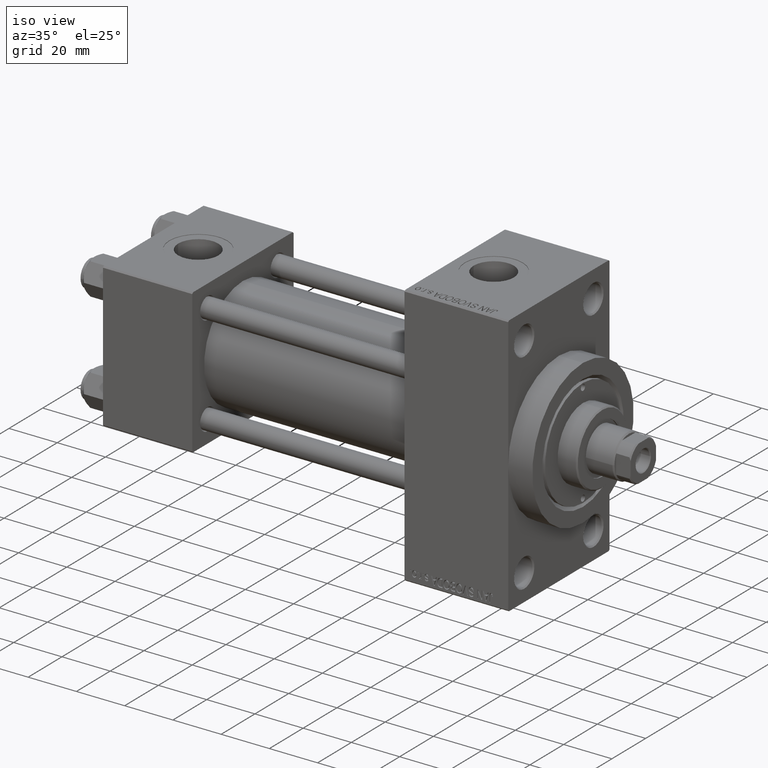
[diagram: clean part render]
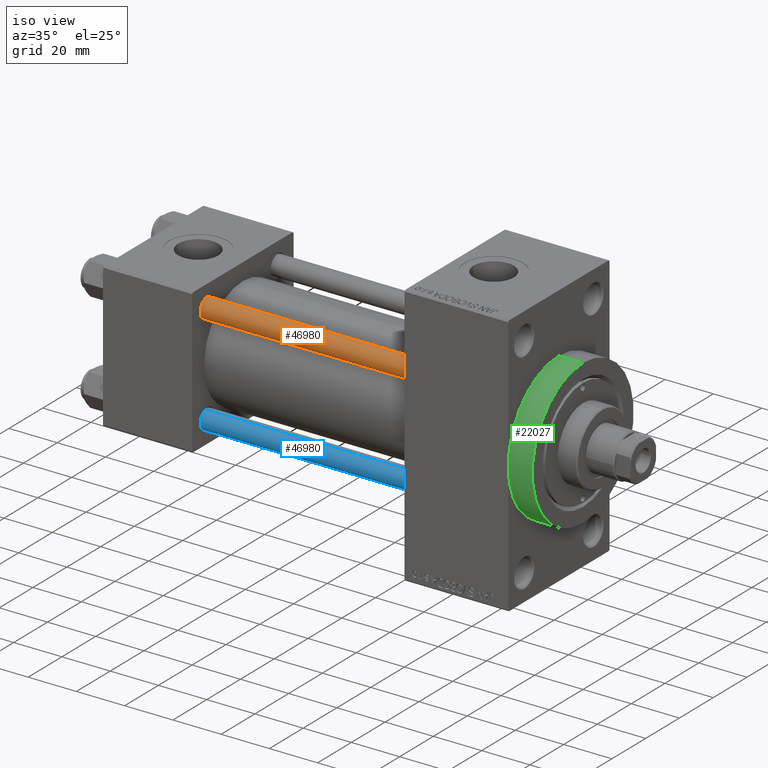
[diagram: same view with three faces highlighted in distinct colors, each labeled with its STEP entity id]
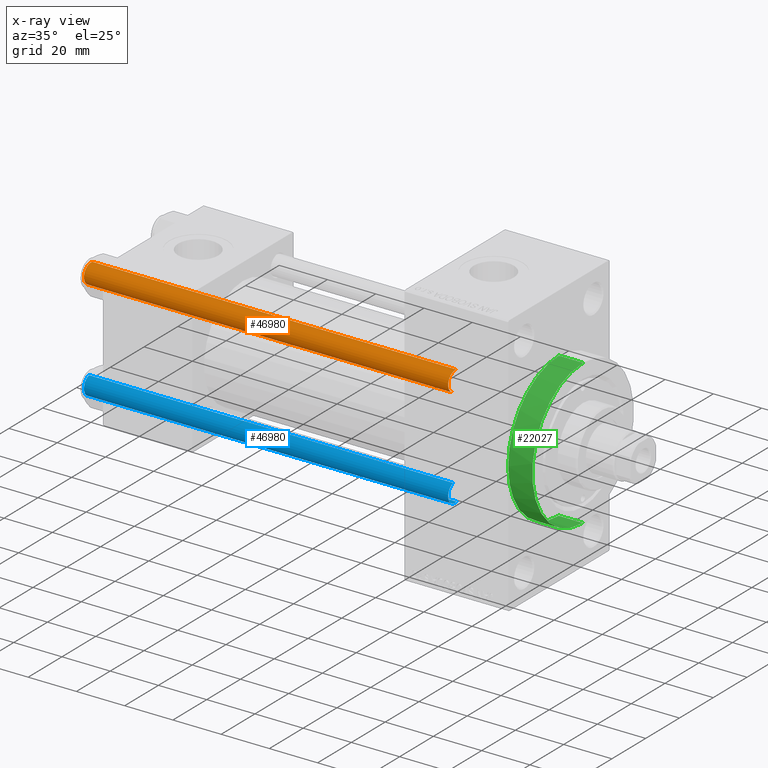
[diagram: x-ray of the same camera — body ghosted, the three highlighted faces saturated]
A machine part, iso view with three faces highlighted in distinct colors.
The next image is the same camera in x-ray (body ghosted, the three faces saturated) — at least one of them is partly hidden behind the body in this view.
Their STEP definitions:

[orange] entity #46980 — the highlighted cylindrical surface (edge-blend (fillet) strip) has radius 4 mm, axis along (1, 0, 0).
#1799 = ORIENTED_EDGE ( 'NONE', *, *, #34172, .T. ) ;
#3492 = CARTESIAN_POINT ( 'NONE',  ( 4.000000000000000000, 4.898587196589412829E-16, 0.5000000000000281997 ) ) ;
#4815 = AXIS2_PLACEMENT_3D ( 'NONE', #41974, #42453, #27790 ) ;
#4898 = ORIENTED_EDGE ( 'NONE', *, *, #46753, .F. ) ;
#4943 = DIRECTION ( 'NONE',  ( 1.000000000000000000, 0.000000000000000000, 0.000000000000000000 ) ) ;
#5589 = CARTESIAN_POINT ( 'NONE',  ( 0.000000000000000000, 0.000000000000000000, 152.0000000000000000 ) ) ;
#6131 = CARTESIAN_POINT ( 'NONE',  ( -4.000000000000000000, 0.000000000000000000, 152.0000000000000000 ) ) ;
#6729 = VERTEX_POINT ( 'NONE', #14418 ) ;
#6939 = CARTESIAN_POINT ( 'NONE',  ( 4.000000000000000000, 4.898587196589412829E-16, 152.0000000000000000 ) ) ;
#7734 = AXIS2_PLACEMENT_3D ( 'NONE', #5589, #20215, #9658 ) ;
#9658 = DIRECTION ( 'NONE',  ( -1.000000000000000000, 0.000000000000000000, 0.000000000000000000 ) ) ;
#9699 = EDGE_LOOP ( 'NONE', ( #22522, #1799, #14111, #4898 ) ) ;
#10997 = DIRECTION ( 'NONE',  ( -0.000000000000000000, -0.000000000000000000, -1.000000000000000000 ) ) ;
#14111 = ORIENTED_EDGE ( 'NONE', *, *, #35424, .T. ) ;
#14418 = CARTESIAN_POINT ( 'NONE',  ( 4.000000000000000000, 4.898587196589412829E-16, 151.5000000000000284 ) ) ;
#17840 = VERTEX_POINT ( 'NONE', #3492 ) ;
#18432 = LINE ( 'NONE', #6939, #36995 ) ;
#18456 = VECTOR ( 'NONE', #21218, 1000.000000000000000 ) ;
#20215 = DIRECTION ( 'NONE',  ( -0.000000000000000000, -0.000000000000000000, -1.000000000000000000 ) ) ;
#20336 = CIRCLE ( 'NONE', #36439, 4.000000000000000000 ) ;
#21218 = DIRECTION ( 'NONE',  ( -0.000000000000000000, -0.000000000000000000, -1.000000000000000000 ) ) ;
#22411 = CARTESIAN_POINT ( 'NONE',  ( -4.000000000000000000, 0.000000000000000000, 0.5000000000000281997 ) ) ;
#22522 = ORIENTED_EDGE ( 'NONE', *, *, #45429, .T. ) ;
#22919 = CARTESIAN_POINT ( 'NONE',  ( 0.000000000000000000, 0.000000000000000000, 151.5000000000000284 ) ) ;
#24042 = FACE_OUTER_BOUND ( 'NONE', #9699, .T. ) ;
#25488 = CIRCLE ( 'NONE', #4815, 4.000000000000000000 ) ;
#27790 = DIRECTION ( 'NONE',  ( 1.000000000000000000, 0.000000000000000000, 0.000000000000000000 ) ) ;
#31733 = CYLINDRICAL_SURFACE ( 'NONE', #7734, 4.000000000000000000 ) ;
#32962 = CARTESIAN_POINT ( 'NONE',  ( -4.000000000000000000, 0.000000000000000000, 151.5000000000000284 ) ) ;
#34172 = EDGE_CURVE ( 'NONE', #6729, #17840, #18432, .T. ) ;
#35424 = EDGE_CURVE ( 'NONE', #17840, #36254, #25488, .T. ) ;
#36254 = VERTEX_POINT ( 'NONE', #22411 ) ;
#36439 = AXIS2_PLACEMENT_3D ( 'NONE', #22919, #45513, #4943 ) ;
#36995 = VECTOR ( 'NONE', #10997, 1000.000000000000000 ) ;
#39244 = LINE ( 'NONE', #6131, #18456 ) ;
#41974 = CARTESIAN_POINT ( 'NONE',  ( 0.000000000000000000, 0.000000000000000000, 0.5000000000000281997 ) ) ;
#42453 = DIRECTION ( 'NONE',  ( -0.000000000000000000, -0.000000000000000000, 1.000000000000000000 ) ) ;
#43750 = VERTEX_POINT ( 'NONE', #32962 ) ;
#45429 = EDGE_CURVE ( 'NONE', #43750, #6729, #20336, .T. ) ;
#45513 = DIRECTION ( 'NONE',  ( 0.000000000000000000, 0.000000000000000000, -1.000000000000000000 ) ) ;
#46753 = EDGE_CURVE ( 'NONE', #43750, #36254, #39244, .T. ) ;
#46980 = ADVANCED_FACE ( 'NONE', ( #24042 ), #31733, .T. ) ;

[blue] entity #46980 — the highlighted cylindrical surface (edge-blend (fillet) strip) has radius 4 mm, axis along (-1, 0, 0).
#1799 = ORIENTED_EDGE ( 'NONE', *, *, #34172, .T. ) ;
#3492 = CARTESIAN_POINT ( 'NONE',  ( 4.000000000000000000, 4.898587196589412829E-16, 0.5000000000000281997 ) ) ;
#4815 = AXIS2_PLACEMENT_3D ( 'NONE', #41974, #42453, #27790 ) ;
#4898 = ORIENTED_EDGE ( 'NONE', *, *, #46753, .F. ) ;
#4943 = DIRECTION ( 'NONE',  ( 1.000000000000000000, 0.000000000000000000, 0.000000000000000000 ) ) ;
#5589 = CARTESIAN_POINT ( 'NONE',  ( 0.000000000000000000, 0.000000000000000000, 152.0000000000000000 ) ) ;
#6131 = CARTESIAN_POINT ( 'NONE',  ( -4.000000000000000000, 0.000000000000000000, 152.0000000000000000 ) ) ;
#6729 = VERTEX_POINT ( 'NONE', #14418 ) ;
#6939 = CARTESIAN_POINT ( 'NONE',  ( 4.000000000000000000, 4.898587196589412829E-16, 152.0000000000000000 ) ) ;
#7734 = AXIS2_PLACEMENT_3D ( 'NONE', #5589, #20215, #9658 ) ;
#9658 = DIRECTION ( 'NONE',  ( -1.000000000000000000, 0.000000000000000000, 0.000000000000000000 ) ) ;
#9699 = EDGE_LOOP ( 'NONE', ( #22522, #1799, #14111, #4898 ) ) ;
#10997 = DIRECTION ( 'NONE',  ( -0.000000000000000000, -0.000000000000000000, -1.000000000000000000 ) ) ;
#14111 = ORIENTED_EDGE ( 'NONE', *, *, #35424, .T. ) ;
#14418 = CARTESIAN_POINT ( 'NONE',  ( 4.000000000000000000, 4.898587196589412829E-16, 151.5000000000000284 ) ) ;
#17840 = VERTEX_POINT ( 'NONE', #3492 ) ;
#18432 = LINE ( 'NONE', #6939, #36995 ) ;
#18456 = VECTOR ( 'NONE', #21218, 1000.000000000000000 ) ;
#20215 = DIRECTION ( 'NONE',  ( -0.000000000000000000, -0.000000000000000000, -1.000000000000000000 ) ) ;
#20336 = CIRCLE ( 'NONE', #36439, 4.000000000000000000 ) ;
#21218 = DIRECTION ( 'NONE',  ( -0.000000000000000000, -0.000000000000000000, -1.000000000000000000 ) ) ;
#22411 = CARTESIAN_POINT ( 'NONE',  ( -4.000000000000000000, 0.000000000000000000, 0.5000000000000281997 ) ) ;
#22522 = ORIENTED_EDGE ( 'NONE', *, *, #45429, .T. ) ;
#22919 = CARTESIAN_POINT ( 'NONE',  ( 0.000000000000000000, 0.000000000000000000, 151.5000000000000284 ) ) ;
#24042 = FACE_OUTER_BOUND ( 'NONE', #9699, .T. ) ;
#25488 = CIRCLE ( 'NONE', #4815, 4.000000000000000000 ) ;
#27790 = DIRECTION ( 'NONE',  ( 1.000000000000000000, 0.000000000000000000, 0.000000000000000000 ) ) ;
#31733 = CYLINDRICAL_SURFACE ( 'NONE', #7734, 4.000000000000000000 ) ;
#32962 = CARTESIAN_POINT ( 'NONE',  ( -4.000000000000000000, 0.000000000000000000, 151.5000000000000284 ) ) ;
#34172 = EDGE_CURVE ( 'NONE', #6729, #17840, #18432, .T. ) ;
#35424 = EDGE_CURVE ( 'NONE', #17840, #36254, #25488, .T. ) ;
#36254 = VERTEX_POINT ( 'NONE', #22411 ) ;
#36439 = AXIS2_PLACEMENT_3D ( 'NONE', #22919, #45513, #4943 ) ;
#36995 = VECTOR ( 'NONE', #10997, 1000.000000000000000 ) ;
#39244 = LINE ( 'NONE', #6131, #18456 ) ;
#41974 = CARTESIAN_POINT ( 'NONE',  ( 0.000000000000000000, 0.000000000000000000, 0.5000000000000281997 ) ) ;
#42453 = DIRECTION ( 'NONE',  ( -0.000000000000000000, -0.000000000000000000, 1.000000000000000000 ) ) ;
#43750 = VERTEX_POINT ( 'NONE', #32962 ) ;
#45429 = EDGE_CURVE ( 'NONE', #43750, #6729, #20336, .T. ) ;
#45513 = DIRECTION ( 'NONE',  ( 0.000000000000000000, 0.000000000000000000, -1.000000000000000000 ) ) ;
#46753 = EDGE_CURVE ( 'NONE', #43750, #36254, #39244, .T. ) ;
#46980 = ADVANCED_FACE ( 'NONE', ( #24042 ), #31733, .T. ) ;

[green] entity #22027 — the highlighted cylindrical surface (partial cylindrical patch) has radius 30 mm, axis along (-1, -0, -0).
#6078 = DIRECTION ( 'NONE',  ( 0.000000000000000000, 0.000000000000000000, -1.000000000000000000 ) ) ;
#6299 = ORIENTED_EDGE ( 'NONE', *, *, #20435, .T. ) ;
#6350 = EDGE_CURVE ( 'NONE', #39970, #10097, #16492, .T. ) ;
#6757 = CIRCLE ( 'NONE', #42816, 30.00000000000000000 ) ;
#7792 = CARTESIAN_POINT ( 'NONE',  ( 167.9999999999999716, 0.000000000000000000, 0.000000000000000000 ) ) ;
#8486 = EDGE_CURVE ( 'NONE', #44942, #37207, #22044, .T. ) ;
#9295 = EDGE_LOOP ( 'NONE', ( #40374, #47228, #10052, #28690, #6299 ) ) ;
#10052 = ORIENTED_EDGE ( 'NONE', *, *, #21684, .T. ) ;
#10097 = VERTEX_POINT ( 'NONE', #13049 ) ;
#13015 = CARTESIAN_POINT ( 'NONE',  ( 178.0000000000000000, 0.000000000000000000, 0.000000000000000000 ) ) ;
#13049 = CARTESIAN_POINT ( 'NONE',  ( 167.9999999999999716, -30.00000000000000000, 0.000000000000000000 ) ) ;
#13633 = AXIS2_PLACEMENT_3D ( 'NONE', #13015, #46392, #6078 ) ;
#16052 = EDGE_CURVE ( 'NONE', #46420, #44942, #45828, .T. ) ;
#16149 = CARTESIAN_POINT ( 'NONE',  ( 178.0000000000000000, 0.000000000000000000, 30.00000000000000000 ) ) ;
#16492 = CIRCLE ( 'NONE', #28005, 30.00000000000000000 ) ;
#17535 = AXIS2_PLACEMENT_3D ( 'NONE', #32239, #28644, #25032 ) ;
#17601 = CYLINDRICAL_SURFACE ( 'NONE', #17535, 30.00000000000000000 ) ;
#17985 = VECTOR ( 'NONE', #18452, 1000.000000000000000 ) ;
#18452 = DIRECTION ( 'NONE',  ( -1.000000000000000000, -0.000000000000000000, -0.000000000000000000 ) ) ;
#19282 = CARTESIAN_POINT ( 'NONE',  ( 178.0000000000000000, 0.000000000000000000, 30.00000000000000000 ) ) ;
#19993 = DIRECTION ( 'NONE',  ( -1.000000000000000000, -0.000000000000000000, -0.000000000000000000 ) ) ;
#20435 = EDGE_CURVE ( 'NONE', #10097, #37207, #6757, .T. ) ;
#20744 = CARTESIAN_POINT ( 'NONE',  ( 167.9999999999999716, 3.673940397442059178E-15, -30.00000000000000000 ) ) ;
#21684 = EDGE_CURVE ( 'NONE', #46420, #39970, #27673, .T. ) ;
#21951 = DIRECTION ( 'NONE',  ( 0.000000000000000000, 0.000000000000000000, -1.000000000000000000 ) ) ;
#22027 = ADVANCED_FACE ( 'NONE', ( #24800 ), #17601, .T. ) ;
#22044 = LINE ( 'NONE', #26584, #17985 ) ;
#24588 = CARTESIAN_POINT ( 'NONE',  ( 167.9999999999999716, 0.000000000000000000, 0.000000000000000000 ) ) ;
#24800 = FACE_OUTER_BOUND ( 'NONE', #9295, .T. ) ;
#24825 = DIRECTION ( 'NONE',  ( 0.000000000000000000, 0.000000000000000000, -1.000000000000000000 ) ) ;
#25032 = DIRECTION ( 'NONE',  ( 0.000000000000000000, 0.000000000000000000, 1.000000000000000000 ) ) ;
#26584 = CARTESIAN_POINT ( 'NONE',  ( 178.0000000000000000, 3.673940397442059178E-15, -30.00000000000000000 ) ) ;
#27673 = LINE ( 'NONE', #16149, #35852 ) ;
#28005 = AXIS2_PLACEMENT_3D ( 'NONE', #7792, #28936, #21951 ) ;
#28644 = DIRECTION ( 'NONE',  ( -1.000000000000000000, -0.000000000000000000, -0.000000000000000000 ) ) ;
#28690 = ORIENTED_EDGE ( 'NONE', *, *, #6350, .T. ) ;
#28936 = DIRECTION ( 'NONE',  ( 1.000000000000000000, 0.000000000000000000, 0.000000000000000000 ) ) ;
#32239 = CARTESIAN_POINT ( 'NONE',  ( 178.0000000000000000, 0.000000000000000000, 0.000000000000000000 ) ) ;
#35852 = VECTOR ( 'NONE', #19993, 1000.000000000000000 ) ;
#37207 = VERTEX_POINT ( 'NONE', #20744 ) ;
#39253 = DIRECTION ( 'NONE',  ( 1.000000000000000000, 0.000000000000000000, 0.000000000000000000 ) ) ;
#39970 = VERTEX_POINT ( 'NONE', #45291 ) ;
#40374 = ORIENTED_EDGE ( 'NONE', *, *, #8486, .F. ) ;
#42816 = AXIS2_PLACEMENT_3D ( 'NONE', #24588, #39253, #24825 ) ;
#44942 = VERTEX_POINT ( 'NONE', #46105 ) ;
#45291 = CARTESIAN_POINT ( 'NONE',  ( 167.9999999999999716, 0.000000000000000000, 30.00000000000000000 ) ) ;
#45828 = CIRCLE ( 'NONE', #13633, 30.00000000000000000 ) ;
#46105 = CARTESIAN_POINT ( 'NONE',  ( 178.0000000000000000, 3.673940397442059178E-15, -30.00000000000000000 ) ) ;
#46392 = DIRECTION ( 'NONE',  ( 1.000000000000000000, 0.000000000000000000, 0.000000000000000000 ) ) ;
#46420 = VERTEX_POINT ( 'NONE', #19282 ) ;
#47228 = ORIENTED_EDGE ( 'NONE', *, *, #16052, .F. ) ;